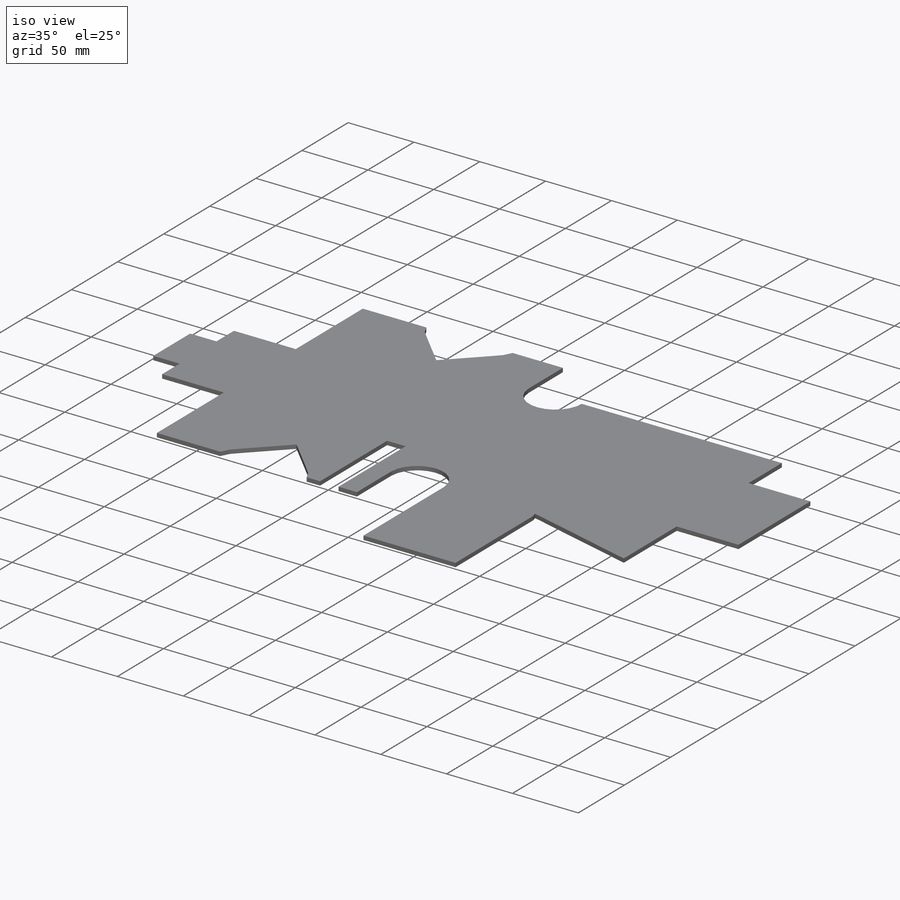
[diagram: iso view]
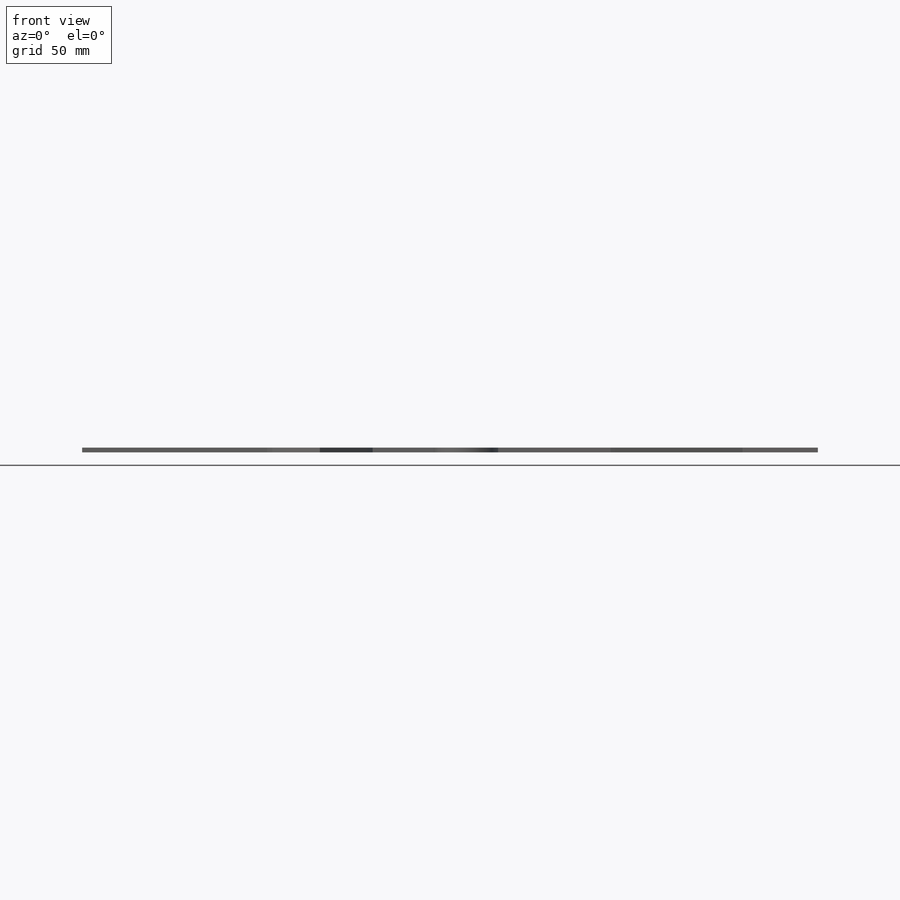
[diagram: front view]
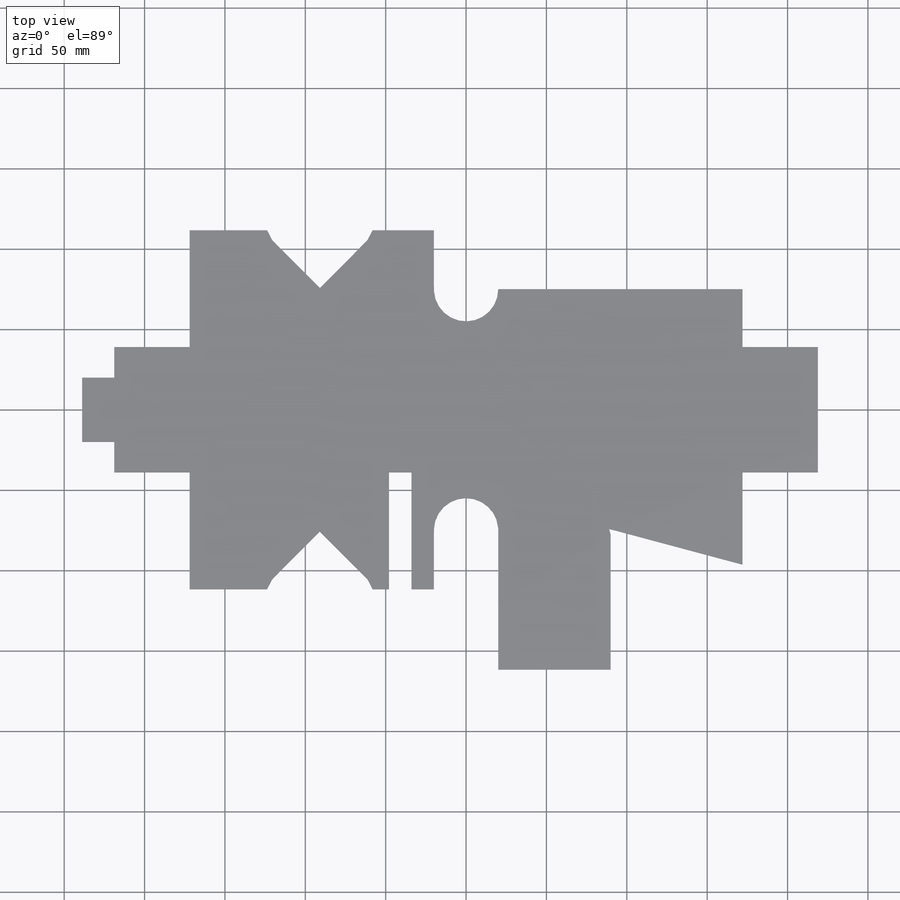
[diagram: top view]
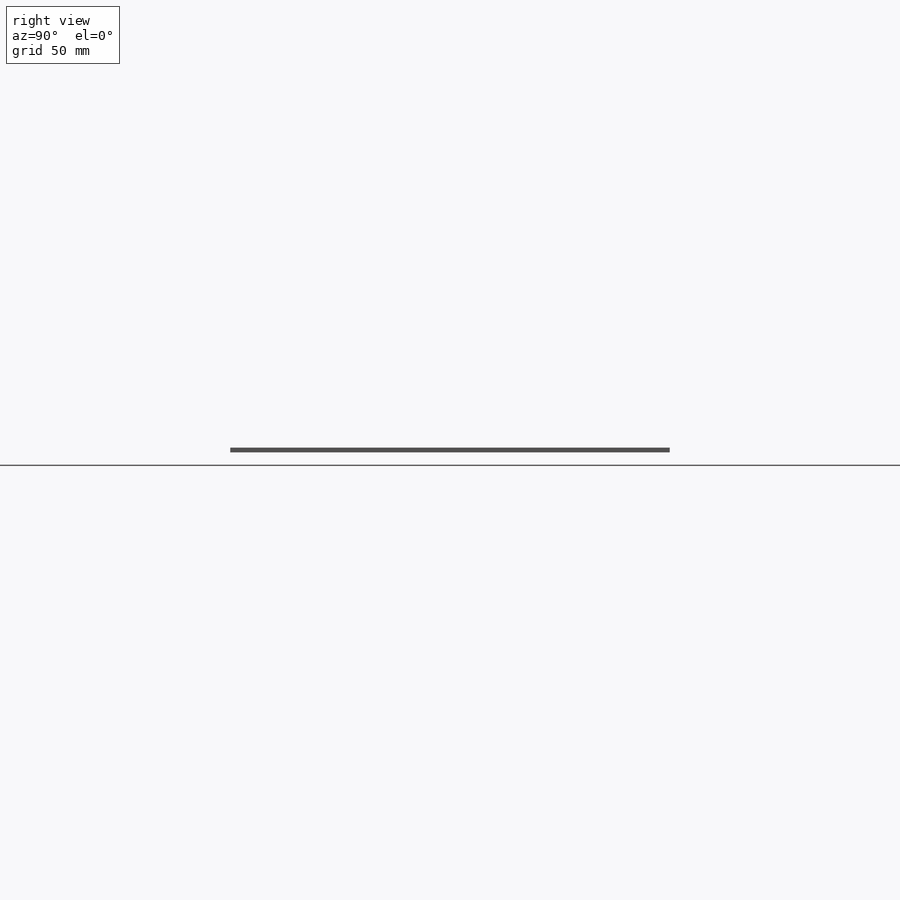
[diagram: right view]
SOLIDWORKS PART (.sldprt)
format: sldprt  version: not decoded by parser v0  size: 826,368 bytes
history: native  units: mm
features: sketch x26, sheet_metal_op x14, mirror x10, cut_extrude x2, material x1, plane x1 + 8 further entries (+12 scaffold rows collapsed; 11 parser-record rows omitted)
feature tree (85):
  scaffold x12  (default folders/planes/origin — collapsed)
  material  "Material <not specified>"
  sketch  "Sketch1"  dims[c1.D1=180.0mm c1.D2=80.0mm c1.D3=80.0mm c2.D1=1.0mm c2.D2=0.5 c2.D3=0.0mm c2.D6=500.0mm]
  sheet_metal_op  "Base-Flange1"
  sheet_metal_op  "BaseBend2"
  sketch  "Sketch6"  dims[D1=40.0mm]
  cut_extrude  "Cut-Extrude1"  [1 undecoded]
  plane  "Plane1"
  sketch  "Sketch7"  dims[D4=10.0mm D1=20.0mm D2=6.0mm D3=10.0mm]
  sheet_metal_op  "Miterbend1"
  sheet_metal_op  "Miterbend2"
  sheet_metal_op  "Miterbend3"
  sheet_metal_op  "Miterbend4"
  mirror  "Mirror1"
  mirror  "MirrorBend2"
  mirror  "MirrorBend3"
  mirror  "MirrorBend4"
  sketch  "Sketch16"  dims[D1=36.0mm D2=36.0mm]
  mirror  "EdgeBend1"
  mirror  "Mirror2"
  mirror  "MirrorBend5"
  sketch  "Sketch17"  dims[c1.D1=40.0mm c1.D2=20.0mm c1.D3=19.0mm c1.Tab1=0.0 c2.D1=1.0mm]
  sketch  "Sketch20"  dims[D1=10.0mm]
  parser-record x11  (decoder bookkeeping rows leaked as tree rows — omitted from the tree; the rows remain in map.json)
  mirror  "SketchBend1"
  sketch  "Sketch21"  dims[D1=14.0mm D2=14.0mm]
  cut_extrude  "Cut-Extrude2"  [1 undecoded]
  mirror  "Edge-Flange2"
  sketch  "Sketch24"
  mirror  "EdgeBend2"
  sketch  "Bend-Lines1"
  sketch  "Bounding-Box1"
  sheet_metal_op  "Sheet-Metal(1)"
  "Flat-Pattern(1)"
  sketch  "Bend-Lines2"
  sketch  "Bounding-Box2"
  sheet_metal_op  "Sheet-Metal(2)"
  "Flat-Pattern(1)"
  sketch  "Bend-Lines2"
  sketch  "Bounding-Box2"
  sheet_metal_op  "Sheet-Metal(3)"
  "Flat-Pattern(3)"
  sketch  "Bend-Lines3"
  sketch  "Bounding-Box3"
  sheet_metal_op  "Sheet-Metal(4)"
  "Flat-Pattern(3)"
  sketch  "Bend-Lines3"
  sketch  "Bounding-Box3"
  sheet_metal_op  "Sheet-Metal(5)"
  "Flat-Pattern(3)"
  sketch  "Bend-Lines3"
  sketch  "Bounding-Box3"
  sheet_metal_op  "Sheet-Metal(6)"
  "Flat-Pattern(6)"
  sketch  "Bend-Lines4"
  sketch  "Bounding-Box4"
  sheet_metal_op  "Sheet-Metal(7)"
  "Flat-Pattern(6)"
  sketch  "Bend-Lines4"
  sketch  "Bounding-Box4"
  sheet_metal_op  "Sheet-Metal(8)"
  "Flat-Pattern(6)"
  sketch  "Bend-Lines4"
  sketch  "Bounding-Box4"
decode coverage: 7 of 52 modeling features carry decoded parameters; 8 rows unclassified (native names shown)
note: 2 parameter values undecoded
note: suppression state not decoded; provenance and decode notes live in map.json
